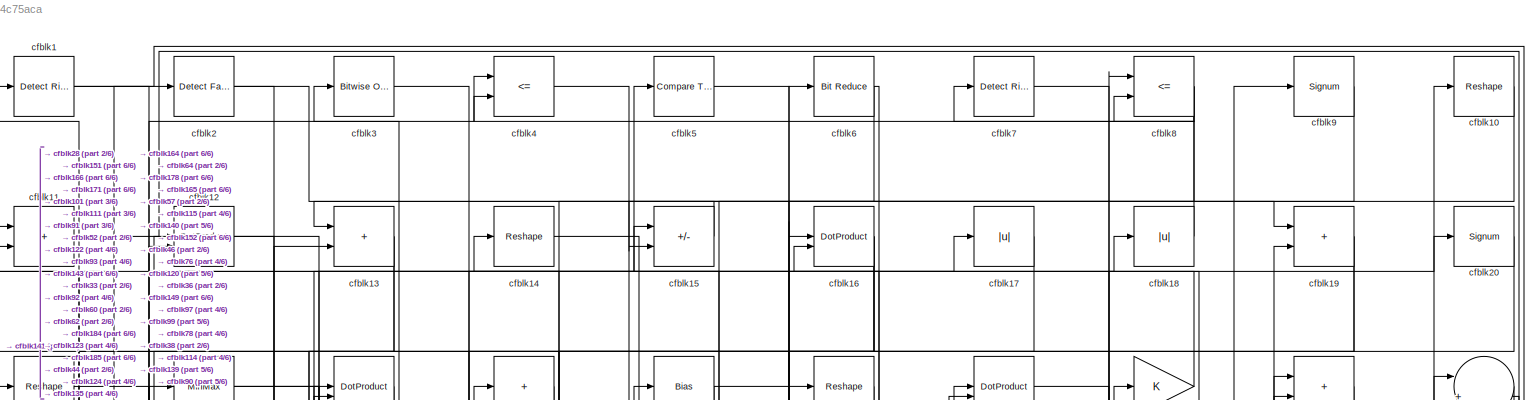
[diagram: root canvas - part 1/6, full width, top band]
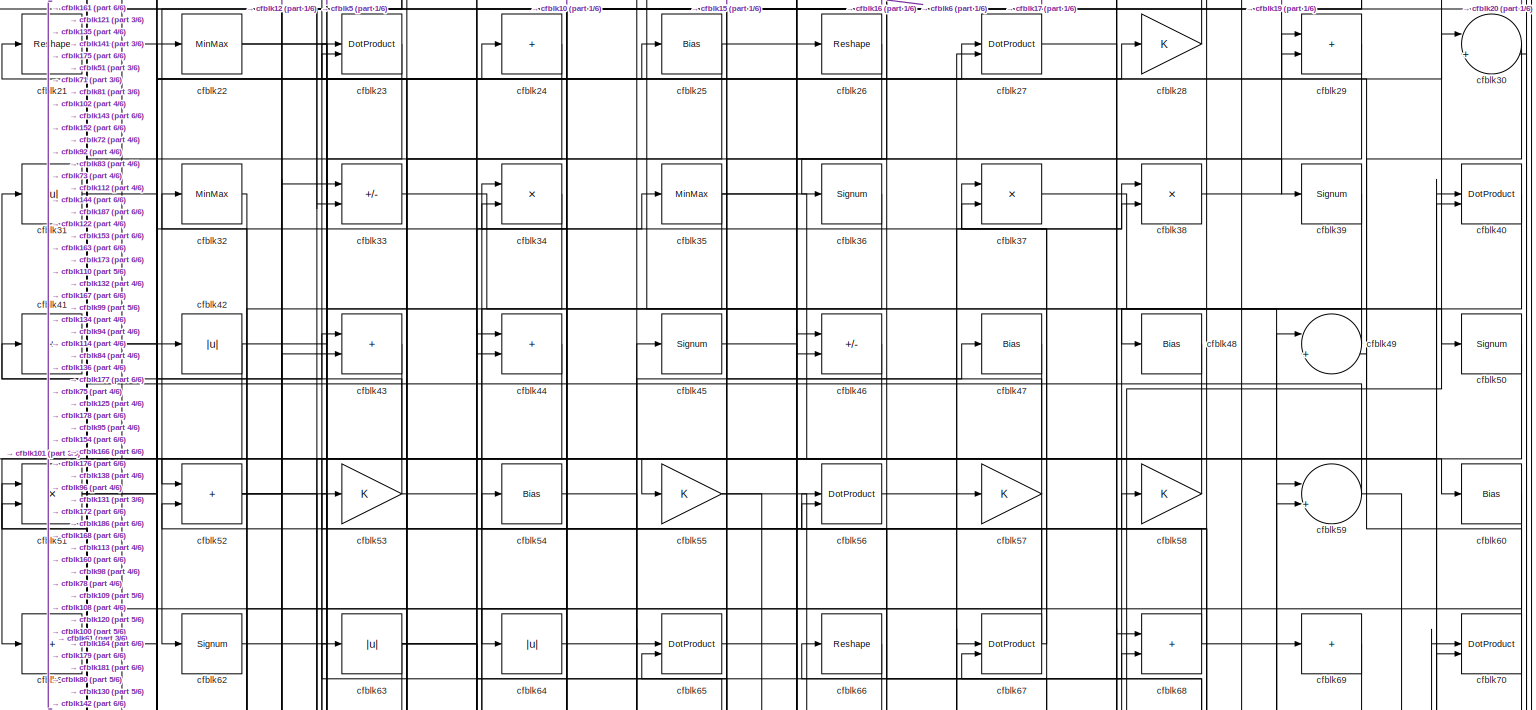
[diagram: root canvas - part 2/6, full width, top band]
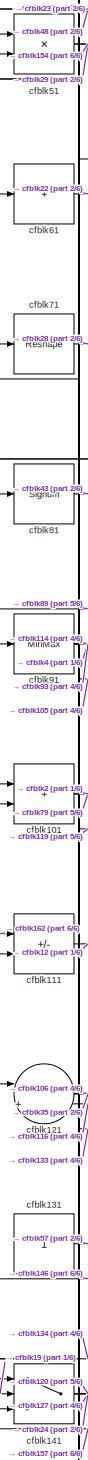
[diagram: root canvas - part 3/6, middle left region]
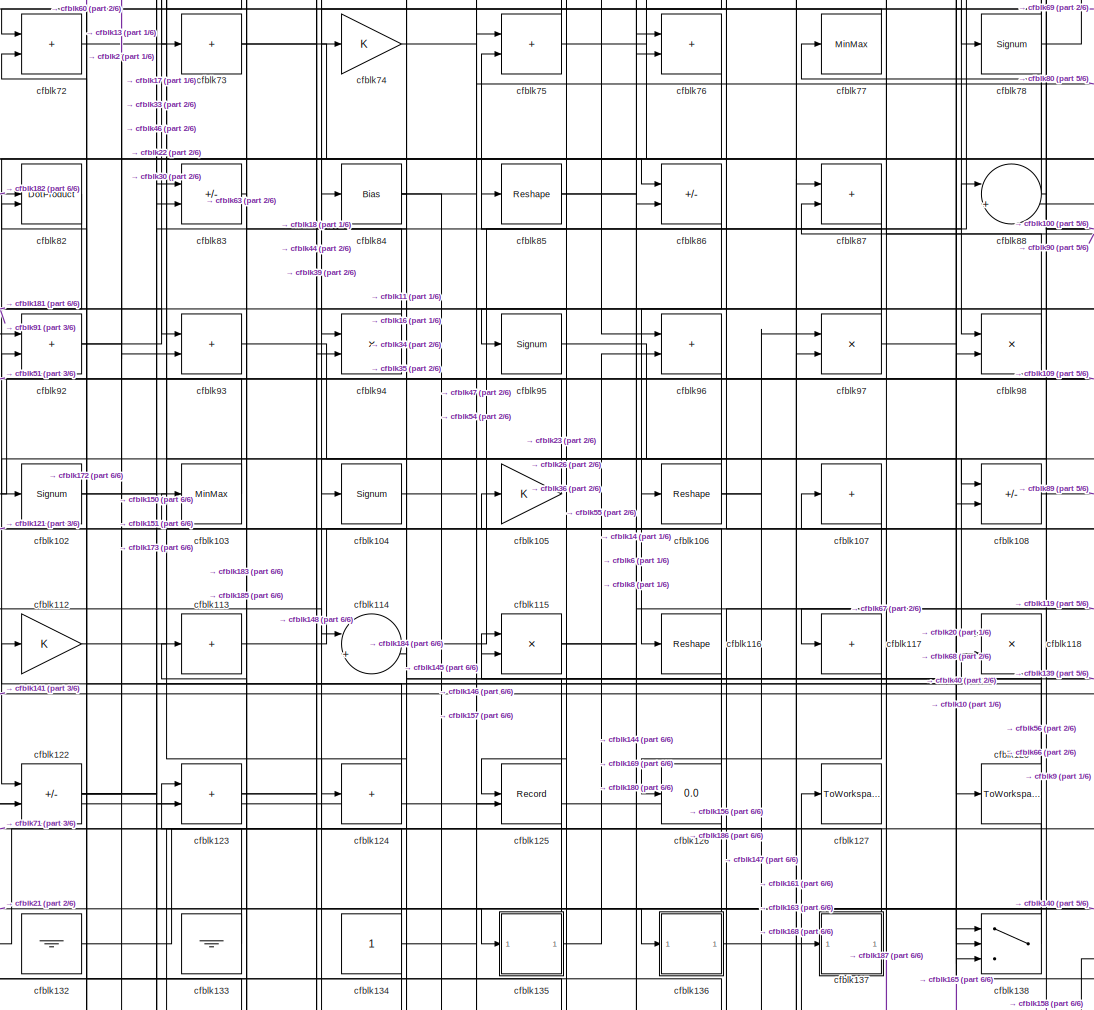
[diagram: root canvas - part 4/6, central region]
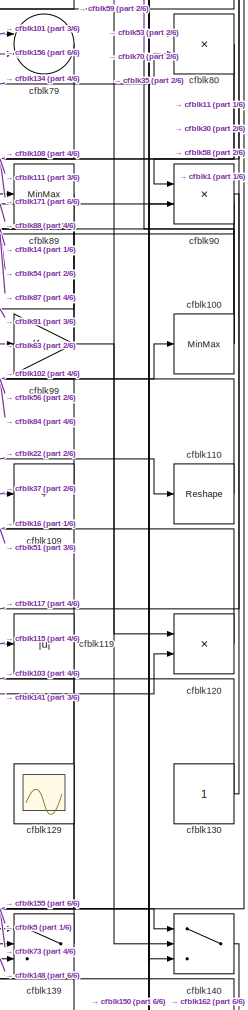
[diagram: root canvas - part 5/6, middle right region]
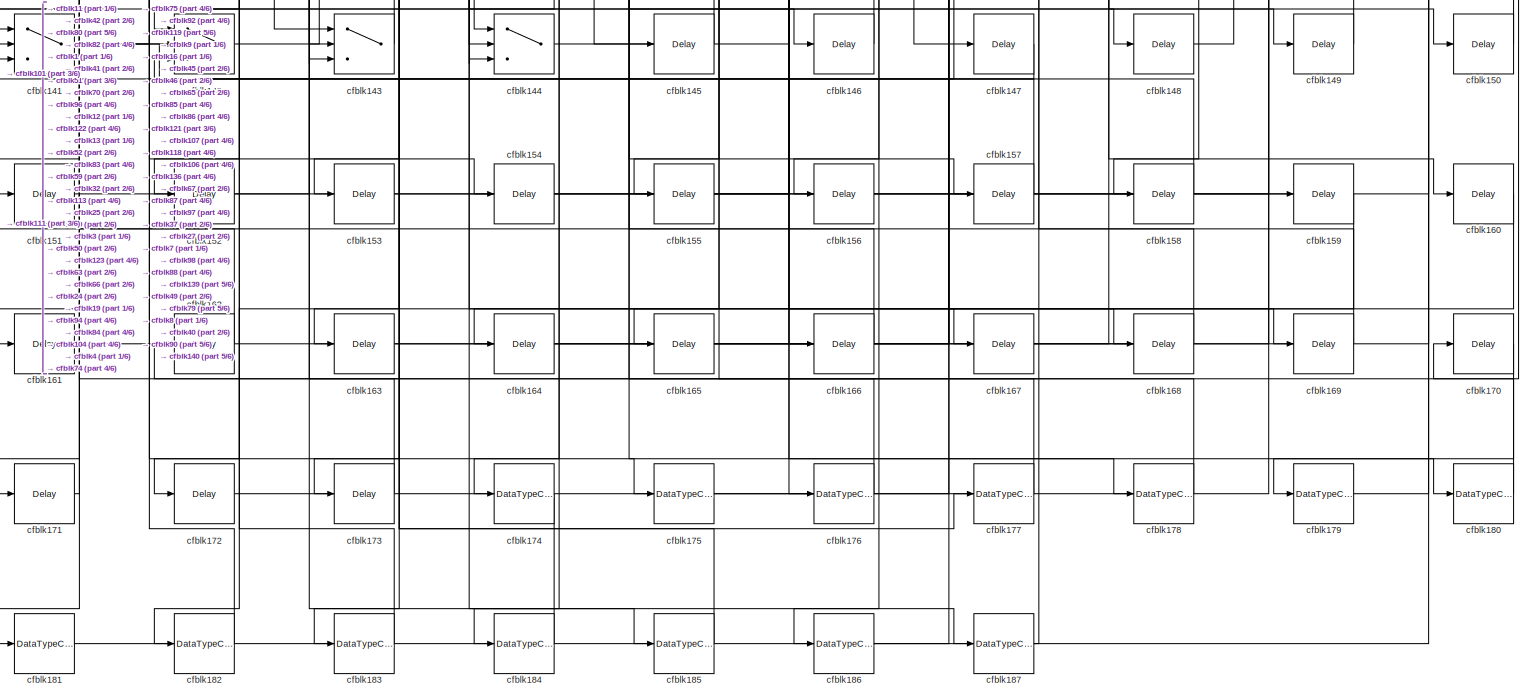
[diagram: root canvas - part 6/6, full width, bottom band]
MODEL slx_657c94c75aca
KIND model
CONFIG AbsTol = auto
CONFIG EnableMultiTasking = off
CONFIG FixedStep = auto
CONFIG MaxStep = auto
CONFIG MinStep = auto
CONFIG RelTol = 1e-3
CONFIG SampleTimeConstraint = Unconstrained
CONFIG SolverName = VariableStepAuto
CONFIG StartTime = 0.0
CONFIG StopTime = 10.0
BLOCK [Reference] cfblk1  REF=hdlsllib/Logic and Bit
Operations/Detect Rise
Nonnegative
  SourceBlock = hdlsllib/Logic and Bit\nOperations/Detect Rise\nNonnegative
  SourceType = Detect Rise Nonnegative
BLOCK [Reshape] cfblk10
BLOCK [MinMax] cfblk100
BLOCK [Sum] cfblk101
  IconShape = rectangular
BLOCK [Signum] cfblk102
BLOCK [MinMax] cfblk103
BLOCK [Signum] cfblk104
BLOCK [Gain] cfblk105
BLOCK [Reshape] cfblk106
BLOCK [Sum] cfblk107
  IconShape = rectangular
  Inputs = +
BLOCK [Sum] cfblk108
  IconShape = rectangular
  Inputs = +-
BLOCK [Sum] cfblk109
  IconShape = rectangular
  Inputs = +
BLOCK [Sum] cfblk11
  IconShape = rectangular
BLOCK [Reshape] cfblk110
BLOCK [Sum] cfblk111
  IconShape = rectangular
  Inputs = +-
BLOCK [Gain] cfblk112
BLOCK [Sum] cfblk113
  IconShape = rectangular
  Inputs = +
BLOCK [Sum] cfblk114
  Inputs = |++
BLOCK [Product] cfblk115
  Inputs = */
  RndMeth = Zero
  SaturateOnIntegerOverflow = on
BLOCK [Reshape] cfblk116
BLOCK [Sum] cfblk117
  IconShape = rectangular
  Inputs = +
BLOCK [Product] cfblk118
  Inputs = */
  RndMeth = Zero
  SaturateOnIntegerOverflow = on
BLOCK [Abs] cfblk119
  SaturateOnIntegerOverflow = off
BLOCK [DotProduct] cfblk12
  OutDataTypeStr = Inherit: Inherit via internal rule
BLOCK [Product] cfblk120
  Inputs = */
  RndMeth = Zero
  SaturateOnIntegerOverflow = on
BLOCK [Sum] cfblk121
  Inputs = |++
BLOCK [Sum] cfblk122
  IconShape = rectangular
  Inputs = +-
BLOCK [Sum] cfblk123
  IconShape = rectangular
BLOCK [Sum] cfblk124
  IconShape = rectangular
  Inputs = +
BLOCK [Record] cfblk125
  CompatibilityTag = XY
  FileSettingsInternal = {"entries":[{"content":{"excelSettings":{"content":{},"type":"Streamout.ExcelSettings"}},"type":"Streamout.FileSettingStorage","uuid":""}],"packageUris":["http:\/\/schema.mathworks.com\/mf0\/streamout_blocks\/R2020a"],"version":"1.0"}
  Layout = [1 1]
  SignalsInternal = {"entries":[{"content":{"signals":[{"content":{"blockPath":[],"dimensions":[1],"domain":"","lineColor":"#a2142f","plots":[1],"port":1,"signalID":6450,"signalName":"XY Graph:1"},"type":"RecordBlkView.Signal","uuid":""},{"content":{"blockPath":[],"dimensions":[1],"domain":"","lineColor":"#139fff","plots":[1],"port":2,"signalID":6453,"signalName":"XY Graph:2"},"type":"RecordBlkView.Signal","uuid":""}...<+146ch>
  VisualizationBindings = {"xyplotplugin":{"info":[{"series":[{"bindingParametersList":[{"parameter":"X-Axis","signalID":6450,"signalName":"XY Graph:1"},{"parameter":"Y-Axis","signalID":6453,"signalName":"XY Graph:2"}],"seriesID":9411}],"subplotID":1}]}}
  st = -1
BLOCK [Display] cfblk126
  Decimation = 1
BLOCK [ToWorkspace] cfblk127
  MaxDataPoints = inf
  SampleTime = -1
  SaveFormat = Timeseries
  VariableName = simout
BLOCK [ToWorkspace] cfblk128
  MaxDataPoints = inf
  SampleTime = -1
  SaveFormat = Timeseries
  VariableName = simout
BLOCK [Scope] cfblk129
  Floating = on
  NumInputPorts = 1
  ScopeSpecificationString = Simulink.scopes.TimeScopeBlockCfg('CurrentConfiguration', extmgr.ConfigurationSet(extmgr.Configuration('Core','General UI',true,'FigureColor',[0.156862745098039 0.156862745098039 0.156862745098039]),extmgr.Configuration('Core','Source UI',true),extmgr.Configuration('Sources','WiredSimulink',true,'DataLoggingVariableName','ScopeData1','DataLoggingSaveFormat','StructureWithTime','DataLoggingLimitDat...<+2713ch>
BLOCK [Sum] cfblk13
  IconShape = rectangular
BLOCK [Constant] cfblk130
  SampleTime = -1
BLOCK [Constant] cfblk131
  SampleTime = -1
BLOCK [Ground] cfblk132
BLOCK [Ground] cfblk133
BLOCK [Constant] cfblk134
  SampleTime = -1
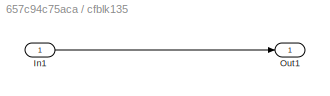
BLOCK [SubSystem] cfblk135
  LibrarySourceBlock = hdlsllib/Ports &\nSubsystems/Subsystem
BLOCK [Inport] cfblk135/In1
BLOCK [Outport] cfblk135/Out1
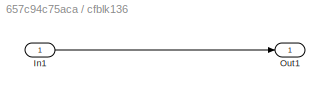
BLOCK [SubSystem] cfblk136
  LibrarySourceBlock = hdlsllib/Ports &\nSubsystems/Subsystem
BLOCK [Inport] cfblk136/In1
BLOCK [Outport] cfblk136/Out1
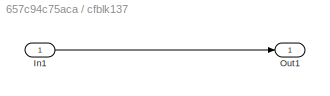
BLOCK [SubSystem] cfblk137
  LibrarySourceBlock = hdlsllib/Ports &\nSubsystems/Subsystem
BLOCK [Inport] cfblk137/In1
BLOCK [Outport] cfblk137/Out1
BLOCK [Switch] cfblk138
  InputSameDT = off
  SaturateOnIntegerOverflow = off
BLOCK [Switch] cfblk139
  InputSameDT = off
  SaturateOnIntegerOverflow = off
BLOCK [Reshape] cfblk14
BLOCK [Switch] cfblk140
  InputSameDT = off
  SaturateOnIntegerOverflow = off
BLOCK [Switch] cfblk141
  InputSameDT = off
  SaturateOnIntegerOverflow = off
BLOCK [Switch] cfblk142
  InputSameDT = off
  SaturateOnIntegerOverflow = off
BLOCK [Switch] cfblk143
  InputSameDT = off
  SaturateOnIntegerOverflow = off
BLOCK [Switch] cfblk144
  InputSameDT = off
  SaturateOnIntegerOverflow = off
BLOCK [Delay] cfblk145
  InputPortMap = u0
  SampleTime = 1
BLOCK [Delay] cfblk146
  InputPortMap = u0
  SampleTime = 1
BLOCK [Delay] cfblk147
  InputPortMap = u0
  SampleTime = 1
BLOCK [Delay] cfblk148
  InputPortMap = u0
  SampleTime = 1
BLOCK [Delay] cfblk149
  InputPortMap = u0
  SampleTime = 1
BLOCK [Sum] cfblk15
  IconShape = rectangular
  Inputs = +-
BLOCK [Delay] cfblk150
  InputPortMap = u0
  SampleTime = 1
BLOCK [Delay] cfblk151
  InputPortMap = u0
  SampleTime = 1
BLOCK [Delay] cfblk152
  InputPortMap = u0
  SampleTime = 1
BLOCK [Delay] cfblk153
  InputPortMap = u0
  SampleTime = 1
BLOCK [Delay] cfblk154
  InputPortMap = u0
  SampleTime = 1
BLOCK [Delay] cfblk155
  InputPortMap = u0
  SampleTime = 1
BLOCK [Delay] cfblk156
  InputPortMap = u0
  SampleTime = 1
BLOCK [Delay] cfblk157
  InputPortMap = u0
  SampleTime = 1
BLOCK [Delay] cfblk158
  InputPortMap = u0
  SampleTime = 1
BLOCK [Delay] cfblk159
  InputPortMap = u0
  SampleTime = 1
BLOCK [DotProduct] cfblk16
  OutDataTypeStr = Inherit: Inherit via internal rule
BLOCK [Delay] cfblk160
  InputPortMap = u0
  SampleTime = 1
BLOCK [Delay] cfblk161
  InputPortMap = u0
  SampleTime = 1
BLOCK [Delay] cfblk162
  InputPortMap = u0
  SampleTime = 1
BLOCK [Delay] cfblk163
  InputPortMap = u0
  SampleTime = 1
BLOCK [Delay] cfblk164
  InputPortMap = u0
  SampleTime = 1
BLOCK [Delay] cfblk165
  InputPortMap = u0
  SampleTime = 1
BLOCK [Delay] cfblk166
  InputPortMap = u0
  SampleTime = 1
BLOCK [Delay] cfblk167
  InputPortMap = u0
  SampleTime = 1
BLOCK [Delay] cfblk168
  InputPortMap = u0
  SampleTime = 1
BLOCK [Delay] cfblk169
  InputPortMap = u0
  SampleTime = 1
BLOCK [Abs] cfblk17
  SaturateOnIntegerOverflow = off
BLOCK [Delay] cfblk170
  InputPortMap = u0
  SampleTime = 1
BLOCK [Delay] cfblk171
  InputPortMap = u0
  SampleTime = 1
BLOCK [Delay] cfblk172
  InputPortMap = u0
  SampleTime = 1
BLOCK [Delay] cfblk173
  InputPortMap = u0
  SampleTime = 1
BLOCK [DataTypeConversion] cfblk174
  OutDataTypeStr = uint8
  RndMeth = Floor
  SaturateOnIntegerOverflow = off
BLOCK [DataTypeConversion] cfblk175
  OutDataTypeStr = uint8
  RndMeth = Floor
  SaturateOnIntegerOverflow = off
BLOCK [DataTypeConversion] cfblk176
  OutDataTypeStr = uint8
  RndMeth = Floor
  SaturateOnIntegerOverflow = off
BLOCK [DataTypeConversion] cfblk177
  OutDataTypeStr = uint8
  RndMeth = Floor
  SaturateOnIntegerOverflow = off
BLOCK [DataTypeConversion] cfblk178
  OutDataTypeStr = uint8
  RndMeth = Floor
  SaturateOnIntegerOverflow = off
BLOCK [DataTypeConversion] cfblk179
  OutDataTypeStr = uint8
  RndMeth = Floor
  SaturateOnIntegerOverflow = off
BLOCK [Abs] cfblk18
  SaturateOnIntegerOverflow = off
BLOCK [DataTypeConversion] cfblk180
  OutDataTypeStr = uint8
  RndMeth = Floor
  SaturateOnIntegerOverflow = off
BLOCK [DataTypeConversion] cfblk181
  OutDataTypeStr = uint8
  RndMeth = Floor
  SaturateOnIntegerOverflow = off
BLOCK [DataTypeConversion] cfblk182
  OutDataTypeStr = uint8
  RndMeth = Floor
  SaturateOnIntegerOverflow = off
BLOCK [DataTypeConversion] cfblk183
  OutDataTypeStr = uint8
  RndMeth = Floor
  SaturateOnIntegerOverflow = off
BLOCK [DataTypeConversion] cfblk184
  OutDataTypeStr = boolean
  RndMeth = Floor
  SaturateOnIntegerOverflow = off
BLOCK [DataTypeConversion] cfblk185
  OutDataTypeStr = uint8
  RndMeth = Floor
  SaturateOnIntegerOverflow = off
BLOCK [DataTypeConversion] cfblk186
  OutDataTypeStr = uint8
  RndMeth = Floor
  SaturateOnIntegerOverflow = off
BLOCK [DataTypeConversion] cfblk187
  OutDataTypeStr = uint8
  RndMeth = Floor
  SaturateOnIntegerOverflow = off
BLOCK [Sum] cfblk19
  IconShape = rectangular
BLOCK [Reference] cfblk2  REF=hdlsllib/Logic and Bit
Operations/Detect Fall
Negative
  SourceBlock = hdlsllib/Logic and Bit\nOperations/Detect Fall\nNegative
  SourceType = Detect Fall Negative
BLOCK [Signum] cfblk20
BLOCK [Reshape] cfblk21
BLOCK [MinMax] cfblk22
BLOCK [DotProduct] cfblk23
  OutDataTypeStr = Inherit: Inherit via internal rule
BLOCK [Sum] cfblk24
  IconShape = rectangular
  Inputs = +
BLOCK [Bias] cfblk25
  Bias = 0.0
  SaturateOnIntegerOverflow = off
BLOCK [Reshape] cfblk26
BLOCK [DotProduct] cfblk27
  OutDataTypeStr = Inherit: Inherit via internal rule
BLOCK [Gain] cfblk28
BLOCK [Sum] cfblk29
  IconShape = rectangular
BLOCK [Reference] cfblk3  REF=simulink/Logic and Bit
Operations/Bitwise
Operator
  LibrarySourceBlock = hdlsllib/Logic and Bit\nOperations/Bitwise\nOperator
  SourceBlock = simulink/Logic and Bit\nOperations/Bitwise\nOperator
  SourceType = Bitwise Operator
BLOCK [Sum] cfblk30
  Inputs = |++
BLOCK [Abs] cfblk31
  SaturateOnIntegerOverflow = off
BLOCK [MinMax] cfblk32
BLOCK [Sum] cfblk33
  IconShape = rectangular
  Inputs = +-
BLOCK [Product] cfblk34
  Inputs = */
  RndMeth = Zero
  SaturateOnIntegerOverflow = on
BLOCK [MinMax] cfblk35
BLOCK [Signum] cfblk36
BLOCK [Product] cfblk37
  Inputs = */
  RndMeth = Zero
  SaturateOnIntegerOverflow = on
BLOCK [Product] cfblk38
  Inputs = */
  RndMeth = Zero
  SaturateOnIntegerOverflow = on
BLOCK [Signum] cfblk39
BLOCK [RelationalOperator] cfblk4
  InputSameDT = off
  Operator = <=
  OutDataTypeStr = boolean
BLOCK [DotProduct] cfblk40
  OutDataTypeStr = Inherit: Inherit via internal rule
BLOCK [Sum] cfblk41
  IconShape = rectangular
  Inputs = +
BLOCK [Abs] cfblk42
  SaturateOnIntegerOverflow = off
BLOCK [Sum] cfblk43
  IconShape = rectangular
BLOCK [Sum] cfblk44
  IconShape = rectangular
BLOCK [Signum] cfblk45
BLOCK [Sum] cfblk46
  IconShape = rectangular
  Inputs = +-
BLOCK [Bias] cfblk47
  Bias = 0.0
  SaturateOnIntegerOverflow = off
BLOCK [Bias] cfblk48
  Bias = 0.0
  SaturateOnIntegerOverflow = off
BLOCK [Sum] cfblk49
  Inputs = |++
BLOCK [Reference] cfblk5  REF=hdlsllib/Logic and Bit
Operations/Compare
To Constant
  SourceBlock = hdlsllib/Logic and Bit\nOperations/Compare\nTo Constant
  SourceType = Compare To Constant
BLOCK [Signum] cfblk50
BLOCK [Product] cfblk51
  Inputs = */
  RndMeth = Zero
  SaturateOnIntegerOverflow = on
BLOCK [Sum] cfblk52
  IconShape = rectangular
BLOCK [Gain] cfblk53
BLOCK [Bias] cfblk54
  Bias = 0.0
  SaturateOnIntegerOverflow = off
BLOCK [Gain] cfblk55
BLOCK [DotProduct] cfblk56
  OutDataTypeStr = Inherit: Inherit via internal rule
BLOCK [Gain] cfblk57
BLOCK [Gain] cfblk58
BLOCK [Sum] cfblk59
  Inputs = |++
BLOCK [Reference] cfblk6  REF=hdlsllib/Logic and Bit
Operations/Bit Reduce
  SourceBlock = hdlsllib/Logic and Bit\nOperations/Bit Reduce
  SourceType = Bit Reduce
BLOCK [Bias] cfblk60
  Bias = 0.0
  SaturateOnIntegerOverflow = off
BLOCK [Sum] cfblk61
  IconShape = rectangular
  Inputs = +
BLOCK [Signum] cfblk62
BLOCK [Abs] cfblk63
  SaturateOnIntegerOverflow = off
BLOCK [Abs] cfblk64
  SaturateOnIntegerOverflow = off
BLOCK [DotProduct] cfblk65
  OutDataTypeStr = Inherit: Inherit via internal rule
BLOCK [Reshape] cfblk66
BLOCK [DotProduct] cfblk67
  OutDataTypeStr = Inherit: Inherit via internal rule
BLOCK [Sum] cfblk68
  IconShape = rectangular
BLOCK [Sum] cfblk69
  IconShape = rectangular
  Inputs = +
BLOCK [Reference] cfblk7  REF=hdlsllib/Logic and Bit
Operations/Detect Rise
Nonnegative
  SourceBlock = hdlsllib/Logic and Bit\nOperations/Detect Rise\nNonnegative
  SourceType = Detect Rise Nonnegative
BLOCK [DotProduct] cfblk70
  OutDataTypeStr = Inherit: Inherit via internal rule
BLOCK [Reshape] cfblk71
BLOCK [Sum] cfblk72
  IconShape = rectangular
BLOCK [Sum] cfblk73
  IconShape = rectangular
  Inputs = +
BLOCK [Gain] cfblk74
BLOCK [Sum] cfblk75
  IconShape = rectangular
BLOCK [Sum] cfblk76
  IconShape = rectangular
BLOCK [MinMax] cfblk77
BLOCK [Signum] cfblk78
BLOCK [Sum] cfblk79
  Inputs = |++
BLOCK [RelationalOperator] cfblk8
  InputSameDT = off
  Operator = <=
  OutDataTypeStr = boolean
BLOCK [Product] cfblk80
  Inputs = */
  RndMeth = Zero
  SaturateOnIntegerOverflow = on
BLOCK [Signum] cfblk81
BLOCK [DotProduct] cfblk82
  OutDataTypeStr = Inherit: Inherit via internal rule
BLOCK [Sum] cfblk83
  IconShape = rectangular
  Inputs = +-
BLOCK [Bias] cfblk84
  Bias = 0.0
  SaturateOnIntegerOverflow = off
BLOCK [Reshape] cfblk85
BLOCK [Sum] cfblk86
  IconShape = rectangular
  Inputs = +-
BLOCK [Sum] cfblk87
  IconShape = rectangular
BLOCK [Sum] cfblk88
  Inputs = |++
BLOCK [MinMax] cfblk89
BLOCK [Signum] cfblk9
BLOCK [Product] cfblk90
  Inputs = */
  RndMeth = Zero
  SaturateOnIntegerOverflow = on
BLOCK [MinMax] cfblk91
BLOCK [Sum] cfblk92
  IconShape = rectangular
BLOCK [Sum] cfblk93
  IconShape = rectangular
BLOCK [Product] cfblk94
  Inputs = */
  RndMeth = Zero
  SaturateOnIntegerOverflow = on
BLOCK [Signum] cfblk95
BLOCK [Sum] cfblk96
  IconShape = rectangular
BLOCK [Product] cfblk97
  Inputs = */
  RndMeth = Zero
  SaturateOnIntegerOverflow = on
BLOCK [Product] cfblk98
  Inputs = */
  RndMeth = Zero
  SaturateOnIntegerOverflow = on
BLOCK [Gain] cfblk99
NET cfblk100:1 -> cfblk53:1, cfblk70:1, cfblk88:2
NET cfblk101:1 -> cfblk2:1, cfblk79:1
NET cfblk102:1 -> cfblk100:1, cfblk138:2
LINE cfblk103:1 -> cfblk92:2
LINE cfblk104:1 -> cfblk146:1
LINE cfblk105:1 -> cfblk51:1
NET cfblk106:1 -> cfblk104:1, cfblk147:1, cfblk97:1
LINE cfblk107:1 -> cfblk186:1
LINE cfblk108:1 -> cfblk89:1
LINE cfblk109:1 -> cfblk84:1
LINE cfblk10:1 -> cfblk64:1
LINE cfblk110:1 -> cfblk56:1
LINE cfblk111:1 -> cfblk12:2
LINE cfblk112:1 -> cfblk30:1
LINE cfblk113:1 -> cfblk68:1
LINE cfblk114:1 -> cfblk10:1
NET cfblk115:1 -> cfblk119:1, cfblk6:1
NET cfblk116:1 -> cfblk105:1, cfblk121:2
LINE cfblk117:1 -> cfblk126:1
NET cfblk118:1 -> cfblk115:2, cfblk156:1
NET cfblk119:1 -> cfblk155:1, cfblk51:2
LINE cfblk11:1 -> cfblk90:1
LINE cfblk120:1 -> cfblk16:2
NET cfblk121:1 -> cfblk106:1, cfblk35:1
NET cfblk122:1 -> cfblk118:2, cfblk13:2, cfblk150:1, cfblk88:1
NET cfblk123:1 -> cfblk148:1, cfblk18:1
LINE cfblk124:1 -> cfblk72:2
NET cfblk12:1 -> cfblk143:1, cfblk60:1
NET cfblk130:1 -> cfblk30:2, cfblk58:1
LINE cfblk131:1 -> cfblk57:1
LINE cfblk132:1 -> cfblk44:1
LINE cfblk133:1 -> cfblk71:1
NET cfblk134:1 -> cfblk141:3, cfblk34:1, cfblk80:2
LINE cfblk135/In1:1 -> cfblk135/Out1:1
NET cfblk135:1 -> cfblk11:1, cfblk96:2
LINE cfblk136/In1:1 -> cfblk136/Out1:1
NET cfblk136:1 -> cfblk115:1, cfblk168:1
LINE cfblk137/In1:1 -> cfblk137/Out1:1
LINE cfblk137:1 -> cfblk123:1
NET cfblk138:1 -> cfblk112:1, cfblk85:1
LINE cfblk139:1 -> cfblk103:1
NET cfblk13:1 -> cfblk143:3, cfblk151:1
LINE cfblk140:1 -> cfblk162:1
NET cfblk141:1 -> cfblk120:2, cfblk127:1, cfblk24:1
LINE cfblk142:1 -> cfblk59:2
LINE cfblk143:1 -> cfblk32:1
LINE cfblk144:1 -> cfblk86:2
LINE cfblk145:1 -> cfblk92:1
LINE cfblk146:1 -> cfblk121:1
LINE cfblk147:1 -> cfblk142:3
LINE cfblk148:1 -> cfblk139:3
LINE cfblk149:1 -> cfblk8:1
LINE cfblk14:1 -> cfblk76:1
LINE cfblk150:1 -> cfblk139:2
LINE cfblk151:1 -> cfblk123:2
LINE cfblk152:1 -> cfblk16:1
LINE cfblk153:1 -> cfblk59:1
LINE cfblk154:1 -> cfblk46:1
LINE cfblk155:1 -> cfblk90:2
LINE cfblk156:1 -> cfblk79:2
LINE cfblk157:1 -> cfblk101:1
LINE cfblk158:1 -> cfblk142:2
LINE cfblk159:1 -> cfblk174:1
LINE cfblk15:1 -> cfblk13:1
LINE cfblk160:1 -> cfblk182:1
LINE cfblk161:1 -> cfblk97:2
LINE cfblk162:1 -> cfblk111:1
LINE cfblk163:1 -> cfblk87:1
LINE cfblk164:1 -> cfblk70:2
LINE cfblk165:1 -> cfblk98:2
LINE cfblk166:1 -> cfblk1:1
LINE cfblk167:1 -> cfblk49:1
LINE cfblk168:1 -> cfblk37:2
LINE cfblk169:1 -> cfblk75:1
NET cfblk16:1 -> cfblk124:1, cfblk33:2, cfblk46:2
LINE cfblk170:1 -> cfblk179:1
LINE cfblk171:1 -> cfblk11:2
LINE cfblk172:1 -> cfblk67:1
LINE cfblk173:1 -> cfblk83:1
LINE cfblk174:1 -> cfblk177:1
LINE cfblk175:1 -> cfblk159:1
LINE cfblk176:1 -> cfblk41:1
LINE cfblk177:1 -> cfblk65:1
LINE cfblk178:1 -> cfblk65:2
LINE cfblk179:1 -> cfblk40:2
LINE cfblk17:1 -> cfblk44:2
LINE cfblk180:1 -> cfblk170:1
LINE cfblk181:1 -> cfblk40:1
LINE cfblk182:1 -> cfblk82:1
LINE cfblk183:1 -> cfblk82:2
LINE cfblk184:1 -> cfblk3:1
LINE cfblk185:1 -> cfblk113:1
LINE cfblk186:1 -> cfblk27:2
LINE cfblk187:1 -> cfblk107:1
LINE cfblk18:1 -> cfblk8:2
NET cfblk19:1 -> cfblk141:2, cfblk164:1
NET cfblk1:1 -> cfblk139:1, cfblk143:2
LINE cfblk20:1 -> cfblk52:1
LINE cfblk21:1 -> cfblk135:1
NET cfblk22:1 -> cfblk110:1, cfblk94:2
LINE cfblk23:1 -> cfblk81:1
LINE cfblk24:1 -> cfblk144:1
NET cfblk25:1 -> cfblk173:1, cfblk26:1
LINE cfblk26:1 -> cfblk95:1
LINE cfblk27:1 -> cfblk160:1
LINE cfblk28:1 -> cfblk12:1
LINE cfblk29:1 -> cfblk153:1
NET cfblk2:1 -> cfblk19:1, cfblk93:2
LINE cfblk30:1 -> cfblk49:2
LINE cfblk31:1 -> cfblk25:1
LINE cfblk32:1 -> cfblk152:1
LINE cfblk33:1 -> cfblk50:1
LINE cfblk34:1 -> cfblk72:1
NET cfblk35:1 -> cfblk114:2, cfblk39:1, cfblk80:1
LINE cfblk36:1 -> cfblk125:1
LINE cfblk37:1 -> cfblk109:1
LINE cfblk38:1 -> cfblk19:2
LINE cfblk39:1 -> cfblk94:1
LINE cfblk3:1 -> cfblk185:1
LINE cfblk40:1 -> cfblk98:1
NET cfblk41:1 -> cfblk175:1, cfblk42:1
NET cfblk42:1 -> cfblk161:1, cfblk27:1
LINE cfblk43:1 -> cfblk62:1
LINE cfblk44:1 -> cfblk83:2
LINE cfblk45:1 -> cfblk166:1
LINE cfblk46:1 -> cfblk73:1
LINE cfblk47:1 -> cfblk101:2
LINE cfblk48:1 -> cfblk61:1
LINE cfblk49:1 -> cfblk48:1
LINE cfblk4:1 -> cfblk178:1
LINE cfblk50:1 -> cfblk163:1
NET cfblk51:1 -> cfblk154:1, cfblk29:1
NET cfblk52:1 -> cfblk144:3, cfblk187:1, cfblk43:2
NET cfblk53:1 -> cfblk31:1, cfblk38:2
LINE cfblk54:1 -> cfblk136:1
NET cfblk55:1 -> cfblk138:1, cfblk96:1
LINE cfblk56:1 -> cfblk38:1
NET cfblk57:1 -> cfblk141:1, cfblk15:1
LINE cfblk58:1 -> cfblk55:1
NET cfblk59:1 -> cfblk120:1, cfblk21:1
LINE cfblk5:1 -> cfblk140:1
LINE cfblk60:1 -> cfblk102:1
LINE cfblk61:1 -> cfblk22:1
LINE cfblk62:1 -> cfblk5:1
NET cfblk63:1 -> cfblk122:2, cfblk167:1, cfblk68:2, cfblk99:1
LINE cfblk64:1 -> cfblk45:1
LINE cfblk65:1 -> cfblk176:1
LINE cfblk66:1 -> cfblk144:2
NET cfblk67:1 -> cfblk23:2, cfblk37:1
NET cfblk68:1 -> cfblk52:2, cfblk69:1
LINE cfblk69:1 -> cfblk108:2
NET cfblk6:1 -> cfblk15:2, cfblk36:1
NET cfblk70:1 -> cfblk142:1, cfblk29:2
LINE cfblk71:1 -> cfblk28:1
LINE cfblk72:1 -> cfblk86:1
NET cfblk73:1 -> cfblk137:1, cfblk140:3
LINE cfblk74:1 -> cfblk157:1
NET cfblk75:1 -> cfblk23:1, cfblk78:1
LINE cfblk76:1 -> cfblk122:1
LINE cfblk77:1 -> cfblk74:1
NET cfblk78:1 -> cfblk138:3, cfblk56:2, cfblk66:1, cfblk9:1
LINE cfblk79:1 -> cfblk111:2
LINE cfblk7:1 -> cfblk149:1
NET cfblk80:1 -> cfblk108:1, cfblk171:1
LINE cfblk81:1 -> cfblk43:1
LINE cfblk82:1 -> cfblk181:1
LINE cfblk83:1 -> cfblk183:1
NET cfblk84:1 -> cfblk145:1, cfblk34:2, cfblk47:1
NET cfblk85:1 -> cfblk169:1, cfblk180:1
LINE cfblk86:1 -> cfblk125:2
LINE cfblk87:1 -> cfblk116:1
NET cfblk88:1 -> cfblk158:1, cfblk77:1
LINE cfblk89:1 -> cfblk91:1
NET cfblk8:1 -> cfblk4:2, cfblk76:2, cfblk7:1
NET cfblk90:1 -> cfblk117:1, cfblk87:2
NET cfblk91:1 -> cfblk114:1, cfblk4:1, cfblk93:1
NET cfblk92:1 -> cfblk17:1, cfblk33:1
LINE cfblk93:1 -> cfblk128:1
NET cfblk94:1 -> cfblk184:1, cfblk63:1
LINE cfblk95:1 -> cfblk118:1
LINE cfblk96:1 -> cfblk172:1
NET cfblk97:1 -> cfblk20:1, cfblk75:2
LINE cfblk98:1 -> cfblk67:2
NET cfblk99:1 -> cfblk140:2, cfblk14:1, cfblk54:1
LINE cfblk9:1 -> cfblk165:1
note: NET lines group one-source signal fan-out (src -> all destinations, sorted); 1:1 wires keep LINE
